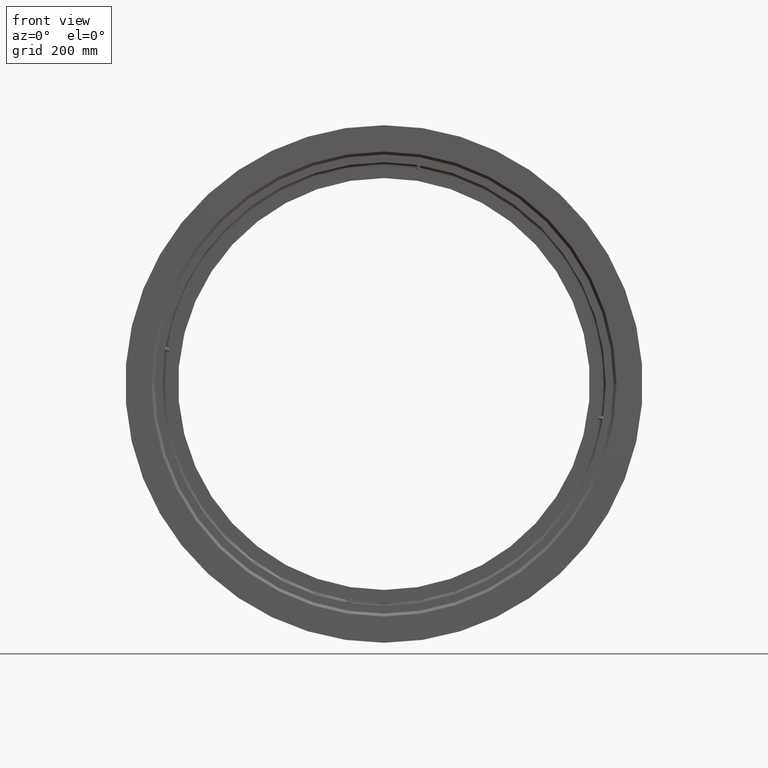
[diagram: clean part render]
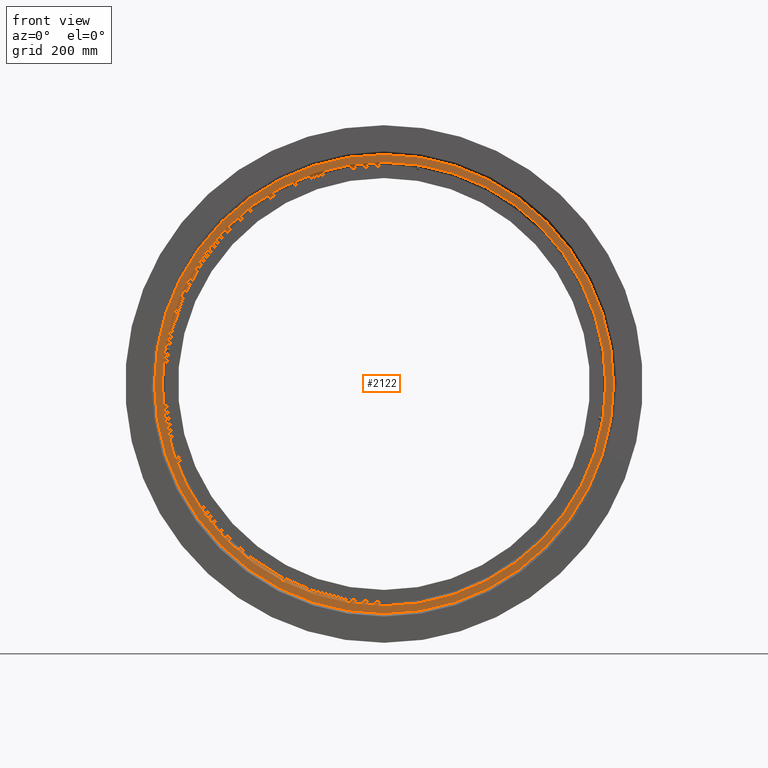
[diagram: same view with one face highlighted and labeled with its STEP entity id]
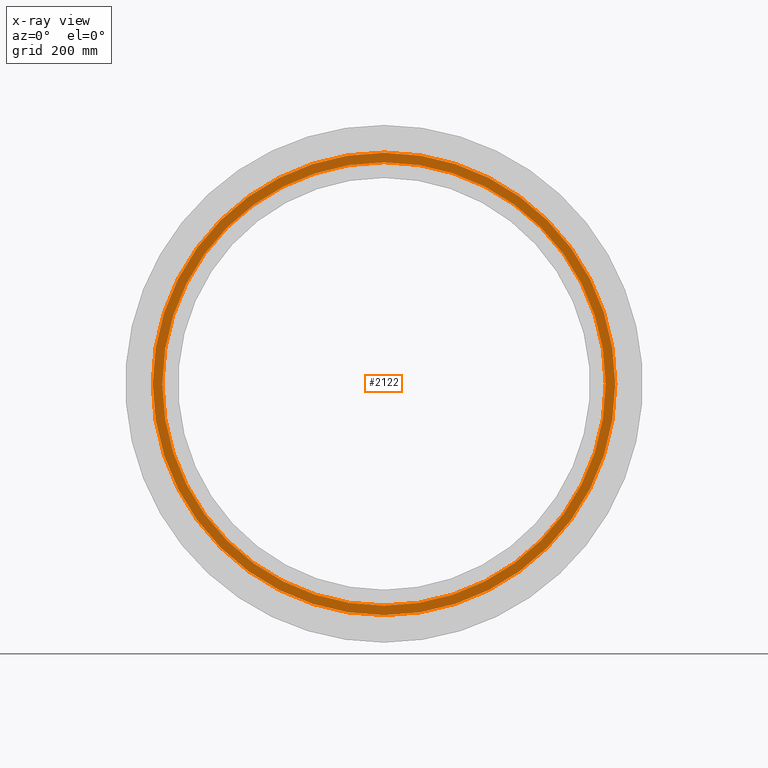
[diagram: x-ray of the same camera — body ghosted, the highlighted face saturated]
A machine part, front view. The second image highlights one B-rep face of the part: STEP entity #2122.
The next image is the same camera in x-ray: the body ghosted, the highlighted face saturated — about 0% of this face is hidden behind the body in this view.
In plain terms, the highlighted planar face has unit normal (-0, 1, -0).
Its self-contained STEP definition (entity closure, byte-faithful):
#886 = DIRECTION ( 'NONE',  ( -0.0000000000000000000, 1.000000000000000000, -2.727064569436389700E-017 ) ) ;
#1153 = EDGE_CURVE ( 'NONE', #5277, #6381, #2035, .T. ) ;
#1464 = CARTESIAN_POINT ( 'NONE',  ( 0.0000000000000000000, -18.00000000000004300, -3.553121410813601800E-016 ) ) ;
#1532 = CIRCLE ( 'NONE', #5978, 468.2500000000000000 ) ;
#1791 = CARTESIAN_POINT ( 'NONE',  ( 0.0000000000000000000, -18.00000000000002800, 468.2500000000000000 ) ) ;
#1821 = AXIS2_PLACEMENT_3D ( 'NONE', #3181, #7504, #3804 ) ;
#1905 = DIRECTION ( 'NONE',  ( 0.0000000000000000000, 2.727064569436389700E-017, 1.000000000000000000 ) ) ;
#2035 = CIRCLE ( 'NONE', #3275, 449.0000000000000000 ) ;
#2083 = DIRECTION ( 'NONE',  ( 0.0000000000000000000, 2.963756072144037900E-017, 1.000000000000000000 ) ) ;
#2122 = ADVANCED_FACE ( 'NONE', ( #7468, #5828 ), #5006, .F. ) ;
#2260 = EDGE_LOOP ( 'NONE', ( #7261, #3523 ) ) ;
#2547 = VERTEX_POINT ( 'NONE', #6211 ) ;
#2732 = CARTESIAN_POINT ( 'NONE',  ( 5.498664128171616400E-014, -18.00000000000004300, -449.0000000000000000 ) ) ;
#3121 = EDGE_LOOP ( 'NONE', ( #6808, #7051 ) ) ;
#3181 = CARTESIAN_POINT ( 'NONE',  ( 0.0000000000000000000, -18.00000000000002800, -2.653607264106575800E-015 ) ) ;
#3275 = AXIS2_PLACEMENT_3D ( 'NONE', #5121, #5050, #5235 ) ;
#3523 = ORIENTED_EDGE ( 'NONE', *, *, #4857, .F. ) ;
#3747 = CARTESIAN_POINT ( 'NONE',  ( 0.0000000000000000000, -18.00000000000002100, 416.9999999999999400 ) ) ;
#3804 = DIRECTION ( 'NONE',  ( 0.0000000000000000000, 3.090821338043308800E-017, 1.000000000000000000 ) ) ;
#3954 = CIRCLE ( 'NONE', #1821, 449.0000000000000000 ) ;
#4410 = CARTESIAN_POINT ( 'NONE',  ( 0.0000000000000000000, -18.00000000000001400, 449.0000000000000000 ) ) ;
#4506 = AXIS2_PLACEMENT_3D ( 'NONE', #4590, #886, #5223 ) ;
#4590 = CARTESIAN_POINT ( 'NONE',  ( 0.0000000000000000000, -18.00000000000004300, -3.553121410813601800E-016 ) ) ;
#4857 = EDGE_CURVE ( 'NONE', #2547, #6721, #7501, .T. ) ;
#5006 = PLANE ( 'NONE',  #6740 ) ;
#5050 = DIRECTION ( 'NONE',  ( -0.0000000000000000000, 1.000000000000000000, -2.727064569436389700E-017 ) ) ;
#5121 = CARTESIAN_POINT ( 'NONE',  ( 0.0000000000000000000, -18.00000000000002800, -2.653607264106575800E-015 ) ) ;
#5223 = DIRECTION ( 'NONE',  ( 0.0000000000000000000, 2.963756072144037900E-017, 1.000000000000000000 ) ) ;
#5235 = DIRECTION ( 'NONE',  ( 0.0000000000000000000, 3.090821338043308800E-017, 1.000000000000000000 ) ) ;
#5277 = VERTEX_POINT ( 'NONE', #4410 ) ;
#5627 = DIRECTION ( 'NONE',  ( -0.0000000000000000000, 1.000000000000000000, -2.727064569436389700E-017 ) ) ;
#5721 = EDGE_CURVE ( 'NONE', #6381, #5277, #3954, .T. ) ;
#5805 = DIRECTION ( 'NONE',  ( -0.0000000000000000000, 1.000000000000000000, -2.727064569436389700E-017 ) ) ;
#5828 = FACE_OUTER_BOUND ( 'NONE', #2260, .T. ) ;
#5935 = EDGE_CURVE ( 'NONE', #6721, #2547, #1532, .T. ) ;
#5978 = AXIS2_PLACEMENT_3D ( 'NONE', #1464, #5805, #2083 ) ;
#6211 = CARTESIAN_POINT ( 'NONE',  ( 5.734408637007481500E-014, -18.00000000000005700, -468.2500000000000000 ) ) ;
#6381 = VERTEX_POINT ( 'NONE', #2732 ) ;
#6721 = VERTEX_POINT ( 'NONE', #1791 ) ;
#6740 = AXIS2_PLACEMENT_3D ( 'NONE', #3747, #5627, #1905 ) ;
#6808 = ORIENTED_EDGE ( 'NONE', *, *, #1153, .T. ) ;
#7051 = ORIENTED_EDGE ( 'NONE', *, *, #5721, .T. ) ;
#7261 = ORIENTED_EDGE ( 'NONE', *, *, #5935, .F. ) ;
#7468 = FACE_BOUND ( 'NONE', #3121, .T. ) ;
#7501 = CIRCLE ( 'NONE', #4506, 468.2500000000000000 ) ;
#7504 = DIRECTION ( 'NONE',  ( -0.0000000000000000000, 1.000000000000000000, -2.727064569436389700E-017 ) ) ;